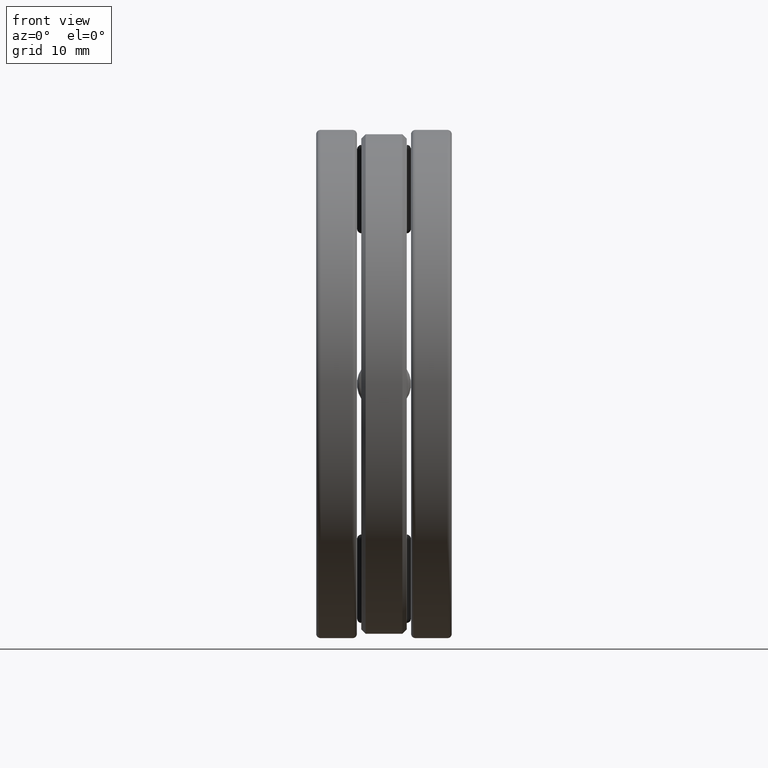
[diagram: clean part render]
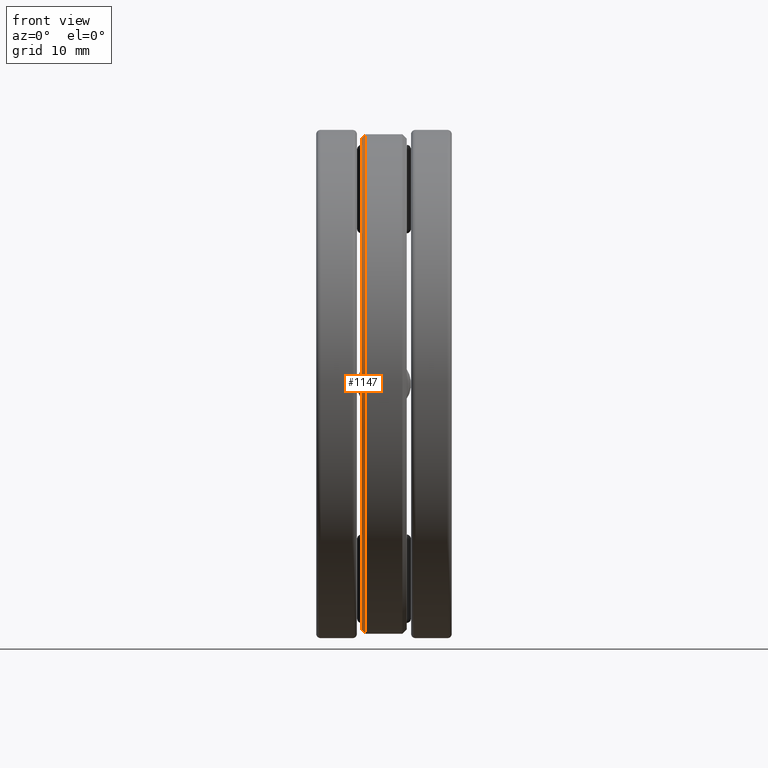
[diagram: same view with one face highlighted and labeled with its STEP entity id]
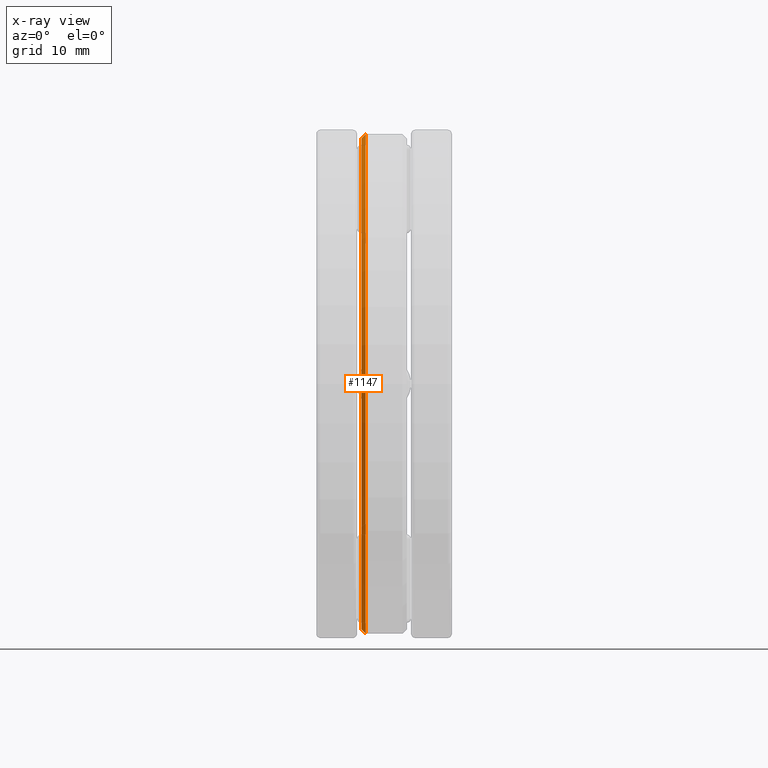
[diagram: x-ray of the same camera — body ghosted, the highlighted face saturated]
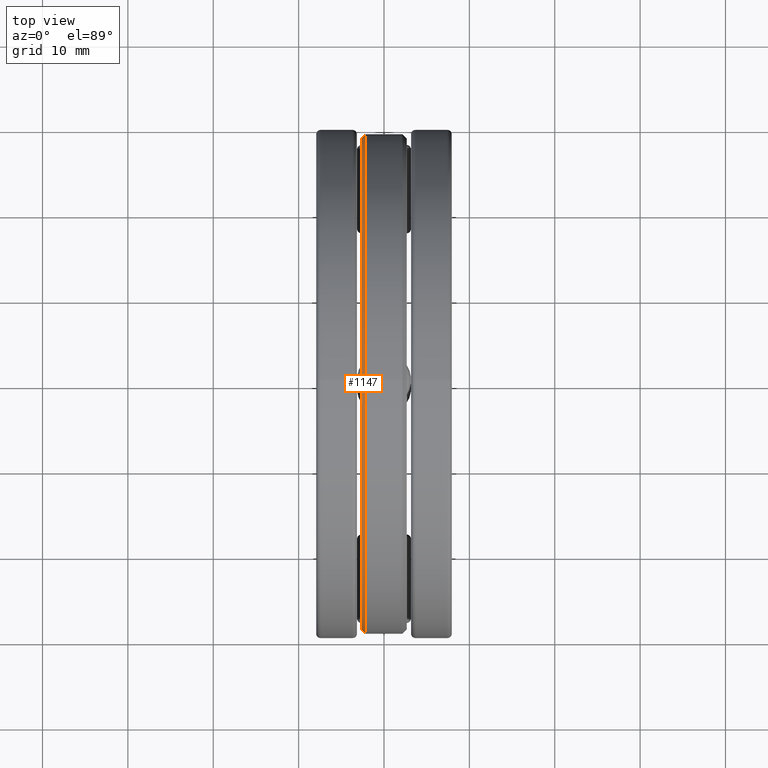
[diagram: same view with one face highlighted and labeled with its STEP entity id]
A machine part, front view. The second image highlights one B-rep face of the part: STEP entity #1147.
The next image is the same camera in x-ray: the body ghosted, the highlighted face saturated — about 0% of this face is hidden behind the body in this view.
A second angle (top view) of the same face is appended — the face is thin or edge-on in the first view.
In plain terms, the highlighted conical surface has half-angle 45 deg.
Its self-contained STEP definition (entity closure, byte-faithful):
#6 = CARTESIAN_POINT ( 'NONE',  ( -0.1050000000000000000, 0.0000000000000000000, 1.131874999999999700 ) ) ;
#146 = ORIENTED_EDGE ( 'NONE', *, *, #541, .T. ) ;
#185 = FACE_OUTER_BOUND ( 'NONE', #1412, .T. ) ;
#196 = DIRECTION ( 'NONE',  ( -1.000000000000000000, -0.0000000000000000000, -0.0000000000000000000 ) ) ;
#227 = VERTEX_POINT ( 'NONE', #6 ) ;
#240 = AXIS2_PLACEMENT_3D ( 'NONE', #1075, #1304, #497 ) ;
#285 = AXIS2_PLACEMENT_3D ( 'NONE', #415, #196, #1350 ) ;
#338 = CARTESIAN_POINT ( 'NONE',  ( -0.08500000000000002000, 0.0000000000000000000, 1.151874999999999800 ) ) ;
#415 = CARTESIAN_POINT ( 'NONE',  ( -0.1050000000000000000, 0.0000000000000000000, 0.0000000000000000000 ) ) ;
#455 = CIRCLE ( 'NONE', #285, 1.131874999999999700 ) ;
#486 = EDGE_CURVE ( 'NONE', #227, #227, #455, .T. ) ;
#497 = DIRECTION ( 'NONE',  ( 0.0000000000000000000, 0.0000000000000000000, -1.000000000000000000 ) ) ;
#541 = EDGE_CURVE ( 'NONE', #1102, #1102, #725, .T. ) ;
#606 = AXIS2_PLACEMENT_3D ( 'NONE', #1117, #889, #646 ) ;
#646 = DIRECTION ( 'NONE',  ( 0.0000000000000000000, 0.0000000000000000000, 1.000000000000000000 ) ) ;
#725 = CIRCLE ( 'NONE', #606, 1.151874999999999800 ) ;
#822 = ORIENTED_EDGE ( 'NONE', *, *, #486, .F. ) ;
#885 = FACE_BOUND ( 'NONE', #1071, .T. ) ;
#889 = DIRECTION ( 'NONE',  ( -1.000000000000000000, -0.0000000000000000000, -0.0000000000000000000 ) ) ;
#1071 = EDGE_LOOP ( 'NONE', ( #822 ) ) ;
#1075 = CARTESIAN_POINT ( 'NONE',  ( -0.1050000000000000000, 0.0000000000000000000, 0.0000000000000000000 ) ) ;
#1102 = VERTEX_POINT ( 'NONE', #338 ) ;
#1117 = CARTESIAN_POINT ( 'NONE',  ( -0.08500000000000002000, 0.0000000000000000000, 0.0000000000000000000 ) ) ;
#1147 = ADVANCED_FACE ( 'NONE', ( #185, #885 ), #1455, .T. ) ;
#1304 = DIRECTION ( 'NONE',  ( 1.000000000000000000, 0.0000000000000000000, 0.0000000000000000000 ) ) ;
#1350 = DIRECTION ( 'NONE',  ( 0.0000000000000000000, 0.0000000000000000000, 1.000000000000000000 ) ) ;
#1412 = EDGE_LOOP ( 'NONE', ( #146 ) ) ;
#1455 = CONICAL_SURFACE ( 'NONE', #240, 1.131874999999999700, 0.7853981633974503900 ) ;